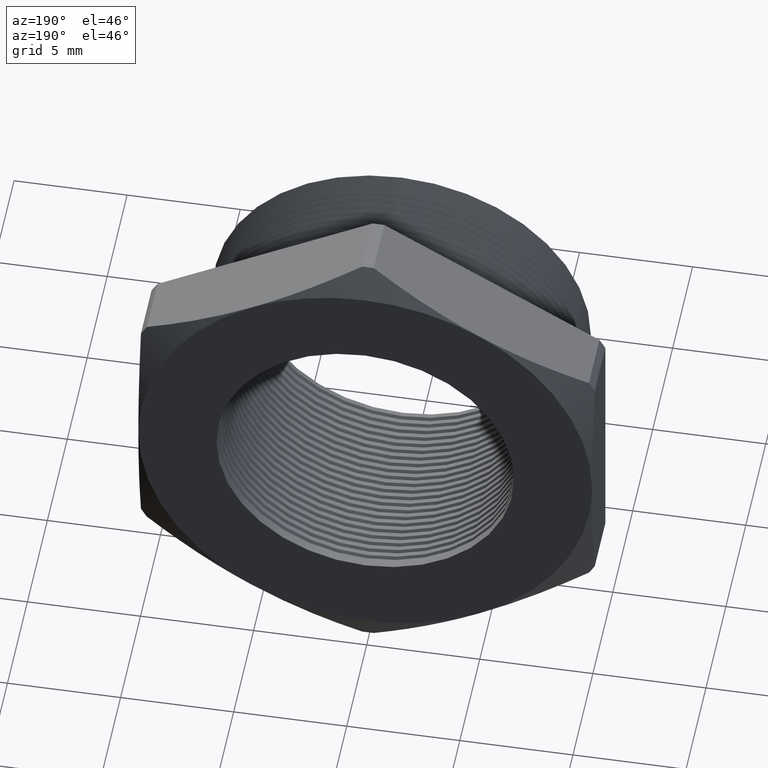
[diagram: clean part render]
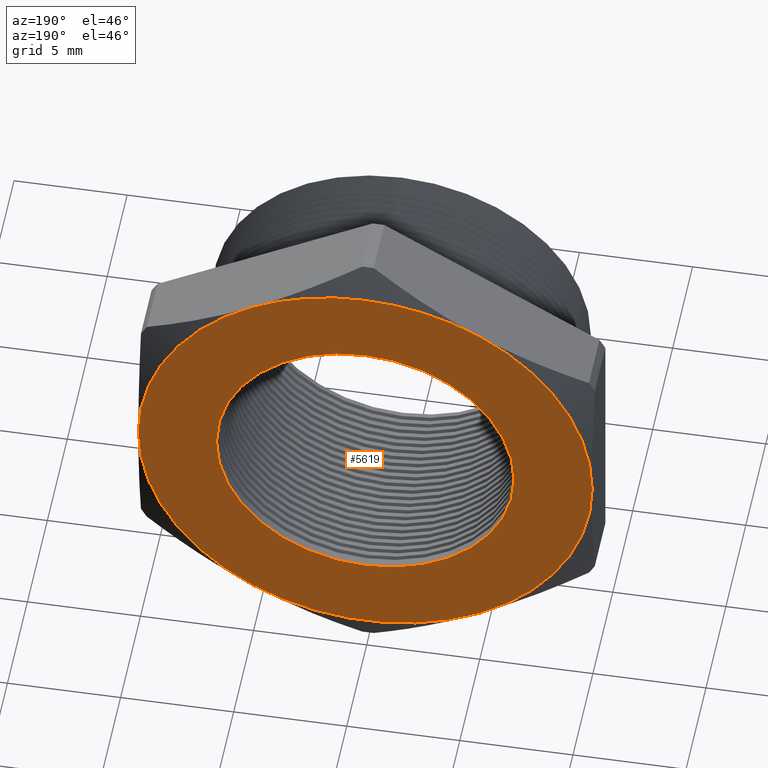
[diagram: same view with one face highlighted and labeled with its STEP entity id]
A machine part, auxiliary view. The second image highlights one B-rep face of the part: STEP entity #5619.
In plain terms, the highlighted planar face has unit normal (0, 1, 0).
Its self-contained STEP definition (entity closure, byte-faithful):
#553 = CARTESIAN_POINT ( 'NONE',  ( 0.1975000000000001800, 0.4075548905829479700, 0.3420800344948533000 ) ) ;
#609 = CARTESIAN_POINT ( 'NONE',  ( 0.0000000000000000000, 0.4075548905829479200, 0.3949999999999999600 ) ) ;
#3431 = CIRCLE ( 'NONE', #3487, 0.2589880461203001900 ) ;
#3482 = CARTESIAN_POINT ( 'NONE',  ( 0.0000000000000000000, 0.4075548905829479200, -0.2589880461203001900 ) ) ;
#3483 = CARTESIAN_POINT ( 'NONE',  ( 3.171688816986526800E-017, 0.4075548905829479200, 0.2589880461203001900 ) ) ;
#3484 = DIRECTION ( 'NONE',  ( 0.0000000000000000000, 0.0000000000000000000, -1.000000000000000000 ) ) ;
#3485 = DIRECTION ( 'NONE',  ( -0.0000000000000000000, -1.000000000000000000, -0.0000000000000000000 ) ) ;
#3486 = CARTESIAN_POINT ( 'NONE',  ( 0.0000000000000000000, 0.4075548905829479200, 0.0000000000000000000 ) ) ;
#3487 = AXIS2_PLACEMENT_3D ( 'NONE', #3486, #3485, #3484 ) ;
#4020 = CARTESIAN_POINT ( 'NONE',  ( 0.0000000000000000000, 0.4075548905829479200, 0.0000000000000000000 ) ) ;
#4032 = DIRECTION ( 'NONE',  ( 0.0000000000000000000, 0.0000000000000000000, -1.000000000000000000 ) ) ;
#4033 = DIRECTION ( 'NONE',  ( -0.0000000000000000000, -1.000000000000000000, -0.0000000000000000000 ) ) ;
#4034 = CARTESIAN_POINT ( 'NONE',  ( 0.0000000000000000000, 0.4075548905829479200, 0.0000000000000000000 ) ) ;
#4035 = AXIS2_PLACEMENT_3D ( 'NONE', #4034, #4033, #4032 ) ;
#4036 = CIRCLE ( 'NONE', #4035, 0.2589880461203001900 ) ;
#4037 = DIRECTION ( 'NONE',  ( 0.0000000000000000000, 0.0000000000000000000, 1.000000000000000000 ) ) ;
#4038 = DIRECTION ( 'NONE',  ( 0.0000000000000000000, 1.000000000000000000, 0.0000000000000000000 ) ) ;
#4039 = CARTESIAN_POINT ( 'NONE',  ( 0.0000000000000000000, 0.4075548905829479200, 0.0000000000000000000 ) ) ;
#4040 = AXIS2_PLACEMENT_3D ( 'NONE', #4039, #4038, #4037 ) ;
#4041 = CIRCLE ( 'NONE', #4040, 0.3949999999999999600 ) ;
#4042 = CARTESIAN_POINT ( 'NONE',  ( -0.1975000000000000100, 0.4075548905829479200, 0.3420800344948533600 ) ) ;
#4061 = CARTESIAN_POINT ( 'NONE',  ( -0.3949999999999999600, 0.4075548905829479200, 0.0000000000000000000 ) ) ;
#4073 = DIRECTION ( 'NONE',  ( 0.0000000000000000000, 0.0000000000000000000, 1.000000000000000000 ) ) ;
#4074 = DIRECTION ( 'NONE',  ( 0.0000000000000000000, 1.000000000000000000, 0.0000000000000000000 ) ) ;
#4075 = CARTESIAN_POINT ( 'NONE',  ( 0.0000000000000000000, 0.4075548905829479200, 0.0000000000000000000 ) ) ;
#4076 = AXIS2_PLACEMENT_3D ( 'NONE', #4075, #4074, #4073 ) ;
#4077 = CIRCLE ( 'NONE', #4076, 0.3949999999999999600 ) ;
#4078 = CARTESIAN_POINT ( 'NONE',  ( 0.3949999999999999600, 0.4075548905829479200, 1.182924880895400300E-016 ) ) ;
#4079 = DIRECTION ( 'NONE',  ( 0.0000000000000000000, 0.0000000000000000000, 1.000000000000000000 ) ) ;
#4080 = DIRECTION ( 'NONE',  ( 0.0000000000000000000, 1.000000000000000000, 0.0000000000000000000 ) ) ;
#4081 = AXIS2_PLACEMENT_3D ( 'NONE', #4020, #4080, #4079 ) ;
#4082 = CIRCLE ( 'NONE', #4081, 0.3949999999999999600 ) ;
#4104 = DIRECTION ( 'NONE',  ( 0.0000000000000000000, 0.0000000000000000000, 1.000000000000000000 ) ) ;
#4105 = DIRECTION ( 'NONE',  ( 0.0000000000000000000, 1.000000000000000000, 0.0000000000000000000 ) ) ;
#4106 = CARTESIAN_POINT ( 'NONE',  ( 0.0000000000000000000, 0.4075548905829479200, 0.0000000000000000000 ) ) ;
#4107 = AXIS2_PLACEMENT_3D ( 'NONE', #4106, #4105, #4104 ) ;
#4108 = CIRCLE ( 'NONE', #4107, 0.3949999999999999600 ) ;
#4134 = DIRECTION ( 'NONE',  ( 0.0000000000000000000, -0.0000000000000000000, 1.000000000000000000 ) ) ;
#4135 = DIRECTION ( 'NONE',  ( 0.0000000000000000000, 1.000000000000000000, 0.0000000000000000000 ) ) ;
#4136 = AXIS2_PLACEMENT_3D ( 'NONE', #4138, #4135, #4134 ) ;
#4138 = CARTESIAN_POINT ( 'NONE',  ( 0.4502999999999999800, 0.4075548905829479200, 0.0000000000000000000 ) ) ;
#4139 = PLANE ( 'NONE',  #4136 ) ;
#4140 = FACE_OUTER_BOUND ( 'NONE', #5571, .T. ) ;
#4141 = FACE_BOUND ( 'NONE', #5621, .T. ) ;
#4164 = CARTESIAN_POINT ( 'NONE',  ( 0.1975000000000000100, 0.4075548905829479200, -0.3420800344948534100 ) ) ;
#4165 = CARTESIAN_POINT ( 'NONE',  ( -0.1975000000000000900, 0.4075548905829479200, -0.3420800344948533000 ) ) ;
#4166 = DIRECTION ( 'NONE',  ( 0.0000000000000000000, 0.0000000000000000000, 1.000000000000000000 ) ) ;
#4167 = DIRECTION ( 'NONE',  ( 0.0000000000000000000, 1.000000000000000000, 0.0000000000000000000 ) ) ;
#4168 = AXIS2_PLACEMENT_3D ( 'NONE', #4175, #4167, #4166 ) ;
#4169 = CIRCLE ( 'NONE', #4168, 0.3949999999999999600 ) ;
#4170 = DIRECTION ( 'NONE',  ( 0.0000000000000000000, 0.0000000000000000000, 1.000000000000000000 ) ) ;
#4171 = DIRECTION ( 'NONE',  ( 0.0000000000000000000, 1.000000000000000000, 0.0000000000000000000 ) ) ;
#4172 = CARTESIAN_POINT ( 'NONE',  ( 0.0000000000000000000, 0.4075548905829479200, 0.0000000000000000000 ) ) ;
#4173 = AXIS2_PLACEMENT_3D ( 'NONE', #4172, #4171, #4170 ) ;
#4174 = CIRCLE ( 'NONE', #4173, 0.3949999999999999600 ) ;
#4175 = CARTESIAN_POINT ( 'NONE',  ( 0.0000000000000000000, 0.4075548905829479200, 0.0000000000000000000 ) ) ;
#4452 = DIRECTION ( 'NONE',  ( 0.0000000000000000000, 0.0000000000000000000, 1.000000000000000000 ) ) ;
#4453 = DIRECTION ( 'NONE',  ( 0.0000000000000000000, 1.000000000000000000, 0.0000000000000000000 ) ) ;
#4454 = CARTESIAN_POINT ( 'NONE',  ( 0.0000000000000000000, 0.4075548905829479200, 0.0000000000000000000 ) ) ;
#4455 = AXIS2_PLACEMENT_3D ( 'NONE', #4454, #4453, #4452 ) ;
#4456 = CIRCLE ( 'NONE', #4455, 0.3949999999999999600 ) ;
#5256 = EDGE_CURVE ( 'NONE', #5257, #5258, #3431, .T. ) ;
#5257 = VERTEX_POINT ( 'NONE', #3483 ) ;
#5258 = VERTEX_POINT ( 'NONE', #3482 ) ;
#5566 = VERTEX_POINT ( 'NONE', #4042 ) ;
#5567 = ORIENTED_EDGE ( 'NONE', *, *, #5815, .T. ) ;
#5568 = ORIENTED_EDGE ( 'NONE', *, *, #5569, .T. ) ;
#5569 = EDGE_CURVE ( 'NONE', #5566, #6210, #4041, .T. ) ;
#5570 = ORIENTED_EDGE ( 'NONE', *, *, #5256, .T. ) ;
#5571 = EDGE_LOOP ( 'NONE', ( #5568, #5567, #5585, #5575, #5642, #5637, #5587 ) ) ;
#5572 = EDGE_CURVE ( 'NONE', #5258, #5257, #4036, .T. ) ;
#5575 = ORIENTED_EDGE ( 'NONE', *, *, #5576, .T. ) ;
#5576 = EDGE_CURVE ( 'NONE', #5578, #5641, #4082, .T. ) ;
#5577 = EDGE_CURVE ( 'NONE', #6175, #5578, #4077, .T. ) ;
#5578 = VERTEX_POINT ( 'NONE', #4078 ) ;
#5585 = ORIENTED_EDGE ( 'NONE', *, *, #5577, .T. ) ;
#5586 = VERTEX_POINT ( 'NONE', #4061 ) ;
#5587 = ORIENTED_EDGE ( 'NONE', *, *, #5597, .T. ) ;
#5597 = EDGE_CURVE ( 'NONE', #5586, #5566, #4108, .T. ) ;
#5618 = ORIENTED_EDGE ( 'NONE', *, *, #5572, .T. ) ;
#5619 = ADVANCED_FACE ( 'NONE', ( #4141, #4140 ), #4139, .T. ) ;
#5621 = EDGE_LOOP ( 'NONE', ( #5618, #5570 ) ) ;
#5637 = ORIENTED_EDGE ( 'NONE', *, *, #5638, .T. ) ;
#5638 = EDGE_CURVE ( 'NONE', #5640, #5586, #4174, .T. ) ;
#5639 = EDGE_CURVE ( 'NONE', #5641, #5640, #4169, .T. ) ;
#5640 = VERTEX_POINT ( 'NONE', #4165 ) ;
#5641 = VERTEX_POINT ( 'NONE', #4164 ) ;
#5642 = ORIENTED_EDGE ( 'NONE', *, *, #5639, .T. ) ;
#5815 = EDGE_CURVE ( 'NONE', #6210, #6175, #4456, .T. ) ;
#6175 = VERTEX_POINT ( 'NONE', #553 ) ;
#6210 = VERTEX_POINT ( 'NONE', #609 ) ;